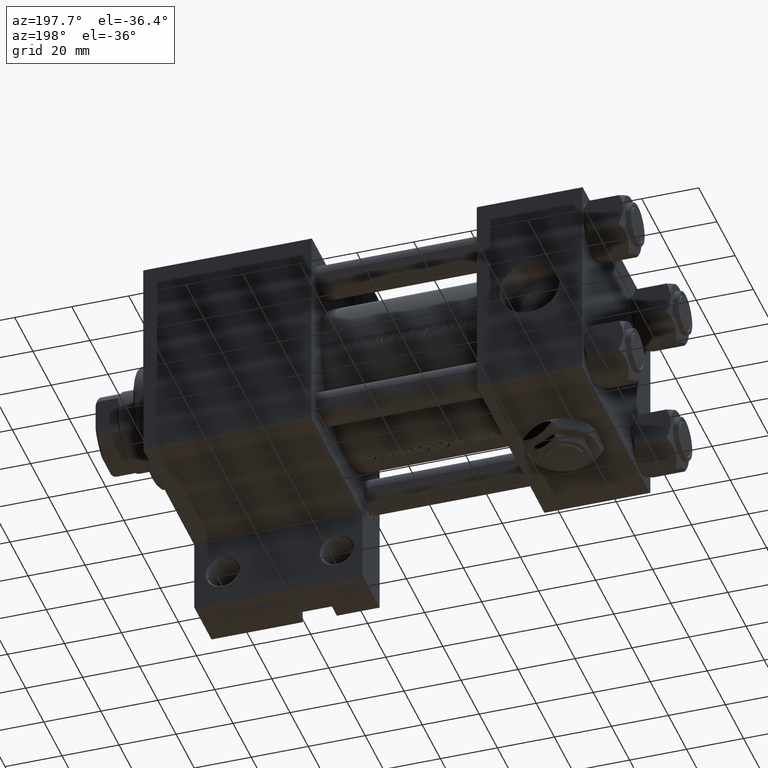
[diagram: clean part render]
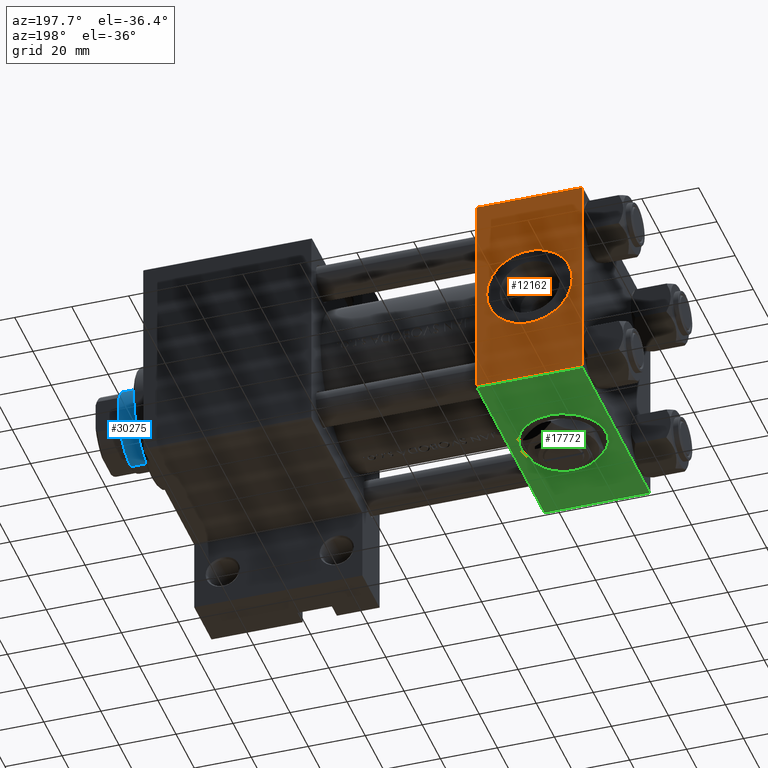
[diagram: same view with three faces highlighted in distinct colors, each labeled with its STEP entity id]
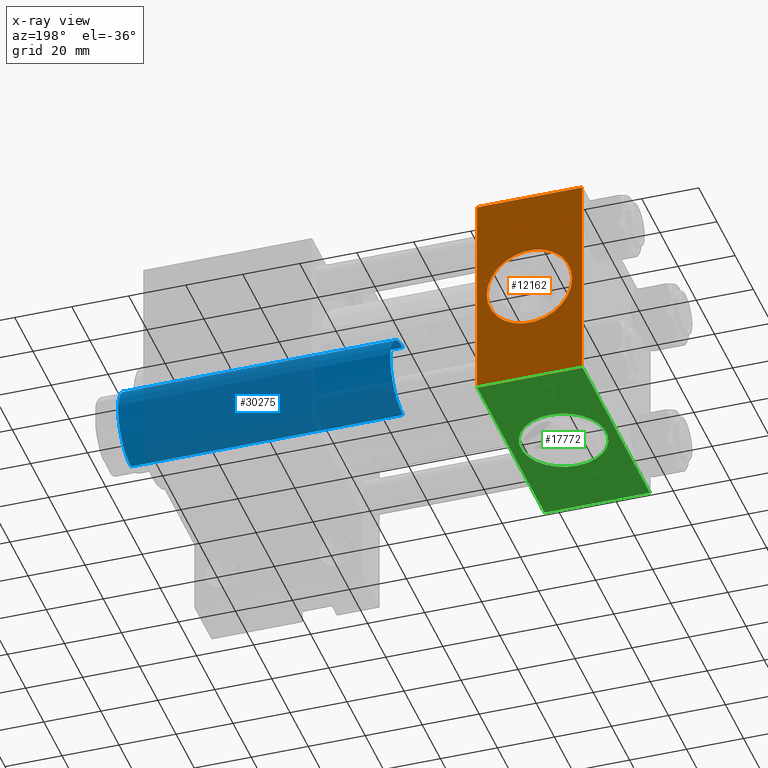
[diagram: x-ray of the same camera — body ghosted, the three highlighted faces saturated]
A machine part, auxiliary view with three faces highlighted in distinct colors.
The next image is the same camera in x-ray (body ghosted, the three faces saturated) — at least one of them is partly hidden behind the body in this view.
Their STEP definitions:

[orange] entity #12162 — the highlighted planar face has unit normal (0, -1, -0).
#1035 = EDGE_CURVE ( 'NONE', #46773, #1405, #8527, .T. ) ;
#1236 = DIRECTION ( 'NONE',  ( 0.000000000000000000, 0.000000000000000000, 1.000000000000000000 ) ) ;
#1405 = VERTEX_POINT ( 'NONE', #21584 ) ;
#3546 = CARTESIAN_POINT ( 'NONE',  ( 37.00000000000000000, 37.49999999999999289, 37.50000000000000000 ) ) ;
#5394 = EDGE_CURVE ( 'NONE', #37137, #1405, #25558, .T. ) ;
#7056 = FACE_BOUND ( 'NONE', #48099, .T. ) ;
#7231 = CARTESIAN_POINT ( 'NONE',  ( 37.00000000000000000, 36.99999999999999289, 37.50000000000000000 ) ) ;
#7336 = VECTOR ( 'NONE', #38025, 1000.000000000000000 ) ;
#7436 = CARTESIAN_POINT ( 'NONE',  ( 0.000000000000000000, 36.99999999999999289, 37.50000000000000000 ) ) ;
#8037 = CARTESIAN_POINT ( 'NONE',  ( 37.00000000000000000, 37.49999999999999289, 37.50000000000000000 ) ) ;
#8527 = LINE ( 'NONE', #8037, #7336 ) ;
#8631 = EDGE_CURVE ( 'NONE', #46773, #48138, #38407, .T. ) ;
#9247 = DIRECTION ( 'NONE',  ( 0.000000000000000000, -1.000000000000000000, -9.251858538542971581E-17 ) ) ;
#10317 = AXIS2_PLACEMENT_3D ( 'NONE', #3546, #32808, #13809 ) ;
#12020 = CARTESIAN_POINT ( 'NONE',  ( 18.50000000000000000, -5.204170427930421283E-15, 37.50000000000000000 ) ) ;
#12148 = DIRECTION ( 'NONE',  ( 1.000000000000000000, 0.000000000000000000, 0.000000000000000000 ) ) ;
#12162 = ADVANCED_FACE ( 'NONE', ( #7056, #21532 ), #22274, .F. ) ;
#12991 = LINE ( 'NONE', #28202, #19636 ) ;
#13809 = DIRECTION ( 'NONE',  ( 0.000000000000000000, 1.000000000000000000, 9.251858538542971581E-17 ) ) ;
#15421 = DIRECTION ( 'NONE',  ( -1.000000000000000000, 0.000000000000000000, 0.000000000000000000 ) ) ;
#15992 = ORIENTED_EDGE ( 'NONE', *, *, #34588, .F. ) ;
#16351 = CARTESIAN_POINT ( 'NONE',  ( 33.50000000000000000, -5.204170427930421283E-15, 37.50000000000000000 ) ) ;
#19393 = VERTEX_POINT ( 'NONE', #16351 ) ;
#19636 = VECTOR ( 'NONE', #9247, 1000.000000000000000 ) ;
#19854 = CARTESIAN_POINT ( 'NONE',  ( 18.50000000000000000, -5.204170427930421283E-15, 37.50000000000000000 ) ) ;
#21532 = FACE_OUTER_BOUND ( 'NONE', #47520, .T. ) ;
#21584 = CARTESIAN_POINT ( 'NONE',  ( 37.00000000000000000, -37.00000000000000711, 37.49999999999999289 ) ) ;
#22274 = PLANE ( 'NONE',  #10317 ) ;
#25558 = LINE ( 'NONE', #35682, #33045 ) ;
#28202 = CARTESIAN_POINT ( 'NONE',  ( 0.000000000000000000, 37.49999999999999289, 37.50000000000000000 ) ) ;
#30095 = ORIENTED_EDGE ( 'NONE', *, *, #5394, .T. ) ;
#30177 = CARTESIAN_POINT ( 'NONE',  ( 3.499999999999997780, -3.367200229209391300E-15, 37.50000000000000000 ) ) ;
#32082 = EDGE_CURVE ( 'NONE', #37185, #19393, #39443, .T. ) ;
#32808 = DIRECTION ( 'NONE',  ( 0.000000000000000000, 9.251858538542971581E-17, -1.000000000000000000 ) ) ;
#33045 = VECTOR ( 'NONE', #40841, 1000.000000000000000 ) ;
#33918 = ORIENTED_EDGE ( 'NONE', *, *, #8631, .T. ) ;
#33951 = AXIS2_PLACEMENT_3D ( 'NONE', #12020, #1236, #46007 ) ;
#34349 = ORIENTED_EDGE ( 'NONE', *, *, #32082, .F. ) ;
#34588 = EDGE_CURVE ( 'NONE', #19393, #37185, #46737, .T. ) ;
#35467 = ORIENTED_EDGE ( 'NONE', *, *, #1035, .F. ) ;
#35682 = CARTESIAN_POINT ( 'NONE',  ( 37.00000000000000000, -37.00000000000000711, 37.49999999999999289 ) ) ;
#36501 = VECTOR ( 'NONE', #15421, 1000.000000000000000 ) ;
#37137 = VERTEX_POINT ( 'NONE', #45454 ) ;
#37185 = VERTEX_POINT ( 'NONE', #30177 ) ;
#38025 = DIRECTION ( 'NONE',  ( 0.000000000000000000, -1.000000000000000000, -9.251858538542971581E-17 ) ) ;
#38407 = LINE ( 'NONE', #7436, #36501 ) ;
#39443 = CIRCLE ( 'NONE', #42665, 15.00000000000000355 ) ;
#40841 = DIRECTION ( 'NONE',  ( 1.000000000000000000, 0.000000000000000000, 0.000000000000000000 ) ) ;
#41895 = DIRECTION ( 'NONE',  ( 0.000000000000000000, 0.000000000000000000, 1.000000000000000000 ) ) ;
#42665 = AXIS2_PLACEMENT_3D ( 'NONE', #19854, #41895, #12148 ) ;
#44015 = EDGE_CURVE ( 'NONE', #48138, #37137, #12991, .T. ) ;
#45454 = CARTESIAN_POINT ( 'NONE',  ( 0.000000000000000000, -37.00000000000000711, 37.49999999999999289 ) ) ;
#46007 = DIRECTION ( 'NONE',  ( 1.000000000000000000, 0.000000000000000000, 0.000000000000000000 ) ) ;
#46737 = CIRCLE ( 'NONE', #33951, 15.00000000000000355 ) ;
#46773 = VERTEX_POINT ( 'NONE', #7231 ) ;
#47280 = CARTESIAN_POINT ( 'NONE',  ( 0.000000000000000000, 36.99999999999999289, 37.50000000000000000 ) ) ;
#47520 = EDGE_LOOP ( 'NONE', ( #48122, #30095, #35467, #33918 ) ) ;
#48099 = EDGE_LOOP ( 'NONE', ( #15992, #34349 ) ) ;
#48122 = ORIENTED_EDGE ( 'NONE', *, *, #44015, .T. ) ;
#48138 = VERTEX_POINT ( 'NONE', #47280 ) ;

[blue] entity #30275 — the highlighted cylindrical surface (partial cylindrical patch) has radius 14 mm, axis along (-1, 0, 0).
#511 = CARTESIAN_POINT ( 'NONE',  ( 14.00000000000000178, 1.714505518806294835E-15, 133.5000000000000284 ) ) ;
#1922 = DIRECTION ( 'NONE',  ( 1.000000000000000000, 0.000000000000000000, 0.000000000000000000 ) ) ;
#2052 = ORIENTED_EDGE ( 'NONE', *, *, #45282, .T. ) ;
#3224 = DIRECTION ( 'NONE',  ( -1.000000000000000000, 0.000000000000000000, 0.000000000000000000 ) ) ;
#4447 = DIRECTION ( 'NONE',  ( -0.000000000000000000, -0.000000000000000000, -1.000000000000000000 ) ) ;
#4461 = VECTOR ( 'NONE', #49013, 1000.000000000000000 ) ;
#5003 = VERTEX_POINT ( 'NONE', #511 ) ;
#10272 = LINE ( 'NONE', #45010, #4461 ) ;
#13733 = FACE_OUTER_BOUND ( 'NONE', #22584, .T. ) ;
#14251 = VERTEX_POINT ( 'NONE', #27949 ) ;
#17290 = CIRCLE ( 'NONE', #23687, 14.00000000000000178 ) ;
#17399 = DIRECTION ( 'NONE',  ( 0.000000000000000000, 0.000000000000000000, -1.000000000000000000 ) ) ;
#17461 = DIRECTION ( 'NONE',  ( 1.000000000000000000, 0.000000000000000000, 0.000000000000000000 ) ) ;
#19669 = LINE ( 'NONE', #39182, #32976 ) ;
#21202 = CARTESIAN_POINT ( 'NONE',  ( 0.000000000000000000, 0.000000000000000000, 38.00000000000000000 ) ) ;
#21270 = AXIS2_PLACEMENT_3D ( 'NONE', #47188, #17399, #1922 ) ;
#22584 = EDGE_LOOP ( 'NONE', ( #32613, #41440, #41731, #2052 ) ) ;
#23687 = AXIS2_PLACEMENT_3D ( 'NONE', #21202, #40221, #17461 ) ;
#24493 = CARTESIAN_POINT ( 'NONE',  ( -14.00000000000000178, 0.000000000000000000, 38.00000000000000000 ) ) ;
#27949 = CARTESIAN_POINT ( 'NONE',  ( -14.00000000000000178, 0.000000000000000000, 133.5000000000000284 ) ) ;
#28329 = VERTEX_POINT ( 'NONE', #24493 ) ;
#29256 = CIRCLE ( 'NONE', #21270, 14.00000000000000178 ) ;
#29605 = EDGE_CURVE ( 'NONE', #5003, #45780, #19669, .T. ) ;
#30275 = ADVANCED_FACE ( 'NONE', ( #13733 ), #44976, .T. ) ;
#32613 = ORIENTED_EDGE ( 'NONE', *, *, #29605, .F. ) ;
#32976 = VECTOR ( 'NONE', #4447, 1000.000000000000000 ) ;
#37216 = DIRECTION ( 'NONE',  ( -0.000000000000000000, -0.000000000000000000, -1.000000000000000000 ) ) ;
#39182 = CARTESIAN_POINT ( 'NONE',  ( 14.00000000000000178, 1.714505518806294835E-15, 134.0000000000000000 ) ) ;
#40221 = DIRECTION ( 'NONE',  ( 0.000000000000000000, 0.000000000000000000, 1.000000000000000000 ) ) ;
#40972 = CARTESIAN_POINT ( 'NONE',  ( 0.000000000000000000, 0.000000000000000000, 134.0000000000000000 ) ) ;
#41440 = ORIENTED_EDGE ( 'NONE', *, *, #44322, .T. ) ;
#41731 = ORIENTED_EDGE ( 'NONE', *, *, #42902, .T. ) ;
#42902 = EDGE_CURVE ( 'NONE', #14251, #28329, #10272, .T. ) ;
#44322 = EDGE_CURVE ( 'NONE', #5003, #14251, #29256, .T. ) ;
#44780 = CARTESIAN_POINT ( 'NONE',  ( 14.00000000000000178, 1.714505518806294835E-15, 38.00000000000000000 ) ) ;
#44976 = CYLINDRICAL_SURFACE ( 'NONE', #48157, 14.00000000000000178 ) ;
#45010 = CARTESIAN_POINT ( 'NONE',  ( -14.00000000000000178, 0.000000000000000000, 134.0000000000000000 ) ) ;
#45282 = EDGE_CURVE ( 'NONE', #28329, #45780, #17290, .T. ) ;
#45780 = VERTEX_POINT ( 'NONE', #44780 ) ;
#47188 = CARTESIAN_POINT ( 'NONE',  ( 0.000000000000000000, 0.000000000000000000, 133.5000000000000284 ) ) ;
#48157 = AXIS2_PLACEMENT_3D ( 'NONE', #40972, #37216, #3224 ) ;
#49013 = DIRECTION ( 'NONE',  ( -0.000000000000000000, -0.000000000000000000, -1.000000000000000000 ) ) ;

[green] entity #17772 — the highlighted planar face has unit normal (0, 0, -1).
#220 = AXIS2_PLACEMENT_3D ( 'NONE', #10269, #14004, #25714 ) ;
#2447 = CARTESIAN_POINT ( 'NONE',  ( 0.000000000000000000, 37.49999999999999289, 37.50000000000000000 ) ) ;
#2610 = CIRCLE ( 'NONE', #220, 15.00000000000000178 ) ;
#2782 = EDGE_CURVE ( 'NONE', #13315, #9828, #2610, .T. ) ;
#4210 = CARTESIAN_POINT ( 'NONE',  ( 37.00000000000000000, 37.49999999999999289, 37.00000000000000000 ) ) ;
#5805 = AXIS2_PLACEMENT_3D ( 'NONE', #22846, #15609, #27325 ) ;
#6510 = VECTOR ( 'NONE', #22355, 1000.000000000000000 ) ;
#8008 = ORIENTED_EDGE ( 'NONE', *, *, #21716, .T. ) ;
#8029 = EDGE_LOOP ( 'NONE', ( #8008, #47531, #18240, #20806 ) ) ;
#9116 = EDGE_LOOP ( 'NONE', ( #44385, #28497 ) ) ;
#9828 = VERTEX_POINT ( 'NONE', #37378 ) ;
#10269 = CARTESIAN_POINT ( 'NONE',  ( 18.50000000000000000, 37.49999999999999289, 0.000000000000000000 ) ) ;
#11375 = CARTESIAN_POINT ( 'NONE',  ( 37.00000000000000000, 37.49999999999999289, -36.99999999999998579 ) ) ;
#12831 = VERTEX_POINT ( 'NONE', #18602 ) ;
#13315 = VERTEX_POINT ( 'NONE', #36022 ) ;
#14004 = DIRECTION ( 'NONE',  ( 0.000000000000000000, 1.000000000000000000, 0.000000000000000000 ) ) ;
#14308 = FACE_OUTER_BOUND ( 'NONE', #8029, .T. ) ;
#15609 = DIRECTION ( 'NONE',  ( 0.000000000000000000, 1.000000000000000000, 0.000000000000000000 ) ) ;
#16301 = VERTEX_POINT ( 'NONE', #21275 ) ;
#16330 = CARTESIAN_POINT ( 'NONE',  ( 37.00000000000000000, 37.49999999999999289, -36.99999999999998579 ) ) ;
#17553 = FACE_BOUND ( 'NONE', #9116, .T. ) ;
#17607 = VERTEX_POINT ( 'NONE', #11375 ) ;
#17772 = ADVANCED_FACE ( 'NONE', ( #17553, #14308 ), #36561, .T. ) ;
#18207 = VECTOR ( 'NONE', #21051, 1000.000000000000000 ) ;
#18240 = ORIENTED_EDGE ( 'NONE', *, *, #43302, .F. ) ;
#18602 = CARTESIAN_POINT ( 'NONE',  ( 37.00000000000000000, 37.49999999999999289, 37.00000000000000000 ) ) ;
#20806 = ORIENTED_EDGE ( 'NONE', *, *, #46823, .T. ) ;
#21051 = DIRECTION ( 'NONE',  ( -1.000000000000000000, 0.000000000000000000, 0.000000000000000000 ) ) ;
#21275 = CARTESIAN_POINT ( 'NONE',  ( 0.000000000000000000, 37.49999999999999289, -36.99999999999998579 ) ) ;
#21537 = DIRECTION ( 'NONE',  ( -0.000000000000000000, 1.000000000000000000, 0.000000000000000000 ) ) ;
#21600 = LINE ( 'NONE', #28858, #6510 ) ;
#21716 = EDGE_CURVE ( 'NONE', #12831, #17607, #21600, .T. ) ;
#21783 = CARTESIAN_POINT ( 'NONE',  ( 37.00000000000000000, 37.49999999999999289, 37.50000000000000000 ) ) ;
#22355 = DIRECTION ( 'NONE',  ( 0.000000000000000000, 0.000000000000000000, -1.000000000000000000 ) ) ;
#22846 = CARTESIAN_POINT ( 'NONE',  ( 18.50000000000000000, 37.49999999999999289, 0.000000000000000000 ) ) ;
#24714 = AXIS2_PLACEMENT_3D ( 'NONE', #21783, #21537, #44804 ) ;
#24782 = EDGE_CURVE ( 'NONE', #9828, #13315, #37732, .T. ) ;
#25165 = LINE ( 'NONE', #2447, #30845 ) ;
#25714 = DIRECTION ( 'NONE',  ( 0.000000000000000000, 0.000000000000000000, 1.000000000000000000 ) ) ;
#27325 = DIRECTION ( 'NONE',  ( 0.000000000000000000, 0.000000000000000000, 1.000000000000000000 ) ) ;
#28497 = ORIENTED_EDGE ( 'NONE', *, *, #24782, .F. ) ;
#28546 = LINE ( 'NONE', #16330, #18207 ) ;
#28858 = CARTESIAN_POINT ( 'NONE',  ( 37.00000000000000000, 37.49999999999999289, 37.50000000000000000 ) ) ;
#29173 = DIRECTION ( 'NONE',  ( 0.000000000000000000, 0.000000000000000000, -1.000000000000000000 ) ) ;
#30845 = VECTOR ( 'NONE', #29173, 1000.000000000000000 ) ;
#34571 = CARTESIAN_POINT ( 'NONE',  ( 0.000000000000000000, 37.49999999999999289, 37.00000000000000000 ) ) ;
#35745 = VECTOR ( 'NONE', #46464, 1000.000000000000000 ) ;
#36022 = CARTESIAN_POINT ( 'NONE',  ( 18.50000000000000000, 37.49999999999999289, 15.00000000000000178 ) ) ;
#36561 = PLANE ( 'NONE',  #24714 ) ;
#37378 = CARTESIAN_POINT ( 'NONE',  ( 18.50000000000000355, 37.49999999999999289, -15.00000000000000178 ) ) ;
#37712 = VERTEX_POINT ( 'NONE', #34571 ) ;
#37732 = CIRCLE ( 'NONE', #5805, 15.00000000000000178 ) ;
#41972 = LINE ( 'NONE', #4210, #35745 ) ;
#43302 = EDGE_CURVE ( 'NONE', #37712, #16301, #25165, .T. ) ;
#44385 = ORIENTED_EDGE ( 'NONE', *, *, #2782, .F. ) ;
#44804 = DIRECTION ( 'NONE',  ( 0.000000000000000000, -0.000000000000000000, 1.000000000000000000 ) ) ;
#46464 = DIRECTION ( 'NONE',  ( 1.000000000000000000, 0.000000000000000000, 0.000000000000000000 ) ) ;
#46823 = EDGE_CURVE ( 'NONE', #37712, #12831, #41972, .T. ) ;
#47531 = ORIENTED_EDGE ( 'NONE', *, *, #47875, .T. ) ;
#47875 = EDGE_CURVE ( 'NONE', #17607, #16301, #28546, .T. ) ;